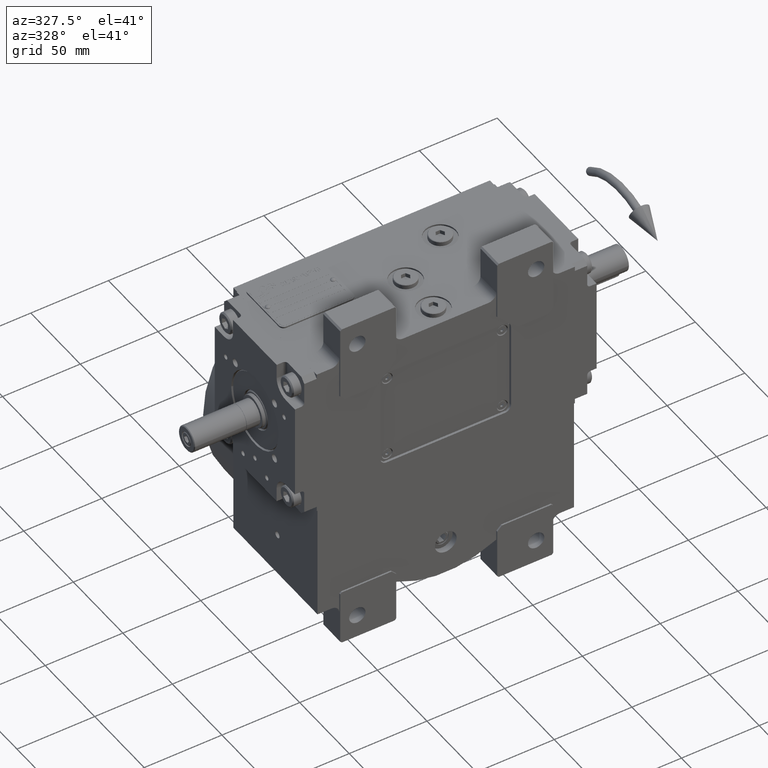
[diagram: clean part render]
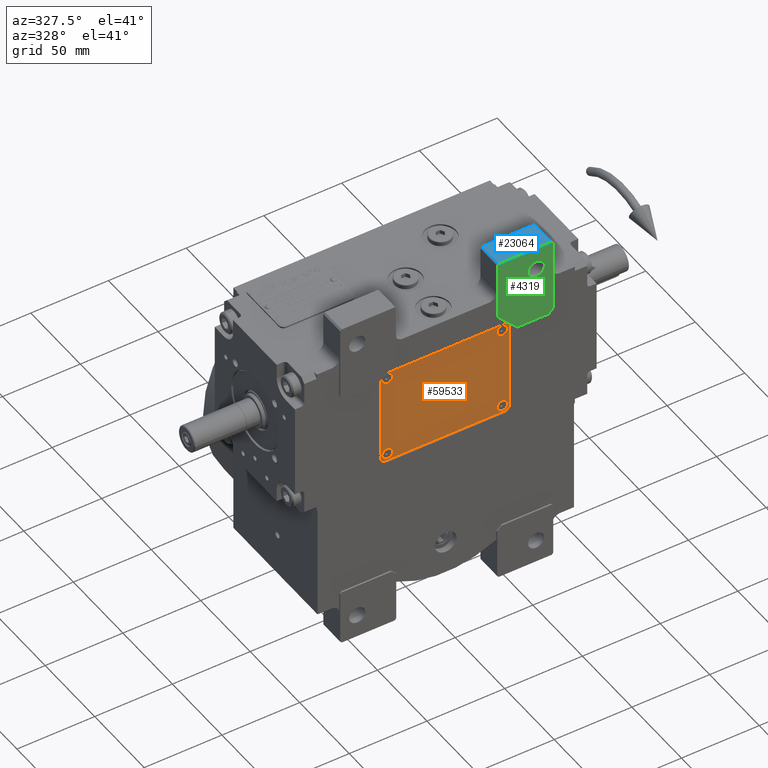
[diagram: same view with three faces highlighted in distinct colors, each labeled with its STEP entity id]
A machine part, auxiliary view with three faces highlighted in distinct colors.
Their STEP definitions:

[orange] entity #59533 — the highlighted planar face has unit normal (0, -1, 0).
#15 = EDGE_CURVE ( 'NONE', #56919, #61101, #45092, .T. ) ;
#425 = AXIS2_PLACEMENT_3D ( 'NONE', #17974, #61627, #13116 ) ;
#451 = VERTEX_POINT ( 'NONE', #5251 ) ;
#864 = CARTESIAN_POINT ( 'NONE',  ( -41.50000000000000000, -29.50000000000000000, 3.000000000000002665 ) ) ;
#940 = LINE ( 'NONE', #20337, #42268 ) ;
#977 = DIRECTION ( 'NONE',  ( 0.7071067811865441310, 0.7071067811865510144, 0.000000000000000000 ) ) ;
#1784 = CARTESIAN_POINT ( 'NONE',  ( 37.00000000000000000, 26.99999999999999645, 3.000000000000002665 ) ) ;
#2648 = CARTESIAN_POINT ( 'NONE',  ( -37.00000000000000000, -26.99999999999999645, 3.000000000000002665 ) ) ;
#2793 = DIRECTION ( 'NONE',  ( 0.000000000000000000, 1.000000000000000000, 0.000000000000000000 ) ) ;
#2813 = EDGE_LOOP ( 'NONE', ( #22416, #39448 ) ) ;
#3307 = AXIS2_PLACEMENT_3D ( 'NONE', #42170, #42500, #7624 ) ;
#4003 = DIRECTION ( 'NONE',  ( 1.000000000000000000, -9.912705577010316675E-16, 0.000000000000000000 ) ) ;
#4811 = CARTESIAN_POINT ( 'NONE',  ( -39.50000000000000000, -31.50000000000000000, 3.000000000000002665 ) ) ;
#4866 = LINE ( 'NONE', #14244, #59106 ) ;
#4970 = AXIS2_PLACEMENT_3D ( 'NONE', #47530, #26831, #46587 ) ;
#5251 = CARTESIAN_POINT ( 'NONE',  ( 33.50000000000000000, -26.99999999999999645, 3.000000000000002665 ) ) ;
#5839 = LINE ( 'NONE', #19737, #23715 ) ;
#7531 = ORIENTED_EDGE ( 'NONE', *, *, #44260, .F. ) ;
#7624 = DIRECTION ( 'NONE',  ( -1.000000000000000000, 0.000000000000000000, 0.000000000000000000 ) ) ;
#8225 = CARTESIAN_POINT ( 'NONE',  ( -33.50000000000000000, 26.99999999999999645, 3.000000000000002665 ) ) ;
#8440 = LINE ( 'NONE', #15759, #55584 ) ;
#8722 = DIRECTION ( 'NONE',  ( 1.000000000000000000, 0.000000000000000000, 0.000000000000000000 ) ) ;
#8912 = EDGE_CURVE ( 'NONE', #10950, #41474, #9518, .T. ) ;
#9510 = CARTESIAN_POINT ( 'NONE',  ( -37.00000000000000000, 26.99999999999999645, 3.000000000000002665 ) ) ;
#9518 = CIRCLE ( 'NONE', #51898, 3.500000000000003109 ) ;
#10328 = EDGE_CURVE ( 'NONE', #41739, #25732, #38378, .T. ) ;
#10392 = VERTEX_POINT ( 'NONE', #12787 ) ;
#10950 = VERTEX_POINT ( 'NONE', #21580 ) ;
#12191 = LINE ( 'NONE', #57446, #34348 ) ;
#12461 = DIRECTION ( 'NONE',  ( 0.000000000000000000, 0.000000000000000000, 1.000000000000000000 ) ) ;
#12601 = ORIENTED_EDGE ( 'NONE', *, *, #55099, .T. ) ;
#12780 = DIRECTION ( 'NONE',  ( 1.000000000000000000, 0.000000000000000000, 0.000000000000000000 ) ) ;
#12787 = CARTESIAN_POINT ( 'NONE',  ( -39.50000000000000000, 31.50000000000000000, 3.000000000000002665 ) ) ;
#13116 = DIRECTION ( 'NONE',  ( 1.000000000000000000, 0.000000000000000000, 0.000000000000000000 ) ) ;
#13262 = VERTEX_POINT ( 'NONE', #57525 ) ;
#13556 = PLANE ( 'NONE',  #19971 ) ;
#14244 = CARTESIAN_POINT ( 'NONE',  ( -39.50000000000000000, 31.50000000000000000, 3.000000000000002665 ) ) ;
#14465 = DIRECTION ( 'NONE',  ( 0.000000000000000000, -1.000000000000000000, 0.000000000000000000 ) ) ;
#15192 = CIRCLE ( 'NONE', #50324, 3.500000000000003109 ) ;
#15214 = DIRECTION ( 'NONE',  ( -0.7071067811865474617, -0.7071067811865474617, 0.000000000000000000 ) ) ;
#15431 = ORIENTED_EDGE ( 'NONE', *, *, #41158, .T. ) ;
#15759 = CARTESIAN_POINT ( 'NONE',  ( -41.50000000000000000, 29.50000000000000000, 3.000000000000002665 ) ) ;
#16145 = LINE ( 'NONE', #55913, #38737 ) ;
#16270 = DIRECTION ( 'NONE',  ( 1.000000000000000000, -9.912705577010316675E-16, 0.000000000000000000 ) ) ;
#17302 = ORIENTED_EDGE ( 'NONE', *, *, #25133, .T. ) ;
#17434 = FACE_BOUND ( 'NONE', #35203, .T. ) ;
#17575 = DIRECTION ( 'NONE',  ( 0.000000000000000000, 0.000000000000000000, 1.000000000000000000 ) ) ;
#17763 = FACE_OUTER_BOUND ( 'NONE', #33383, .T. ) ;
#17974 = CARTESIAN_POINT ( 'NONE',  ( 37.00000000000000000, -26.99999999999999645, 3.000000000000002665 ) ) ;
#18776 = EDGE_CURVE ( 'NONE', #38570, #13262, #5839, .T. ) ;
#18891 = CIRCLE ( 'NONE', #55060, 3.500000000000003109 ) ;
#19362 = EDGE_CURVE ( 'NONE', #25732, #41739, #49635, .T. ) ;
#19737 = CARTESIAN_POINT ( 'NONE',  ( 39.50000000000000000, -31.50000000000000000, 3.000000000000002665 ) ) ;
#19812 = CARTESIAN_POINT ( 'NONE',  ( -41.50000000000000000, 29.50000000000000000, 3.000000000000002665 ) ) ;
#19971 = AXIS2_PLACEMENT_3D ( 'NONE', #27764, #42632, #8722 ) ;
#20181 = DIRECTION ( 'NONE',  ( 0.7071067811865474617, -0.7071067811865474617, 0.000000000000000000 ) ) ;
#20337 = CARTESIAN_POINT ( 'NONE',  ( 41.50000000000000000, 29.50000000000000000, 3.000000000000002665 ) ) ;
#21072 = ORIENTED_EDGE ( 'NONE', *, *, #24102, .F. ) ;
#21580 = CARTESIAN_POINT ( 'NONE',  ( -33.50000000000000000, -26.99999999999999645, 3.000000000000002665 ) ) ;
#22416 = ORIENTED_EDGE ( 'NONE', *, *, #19362, .F. ) ;
#22914 = FACE_BOUND ( 'NONE', #31956, .T. ) ;
#23232 = FACE_BOUND ( 'NONE', #38696, .T. ) ;
#23715 = VECTOR ( 'NONE', #977, 999.9999999999998863 ) ;
#24102 = EDGE_CURVE ( 'NONE', #451, #25673, #15192, .T. ) ;
#24868 = AXIS2_PLACEMENT_3D ( 'NONE', #1784, #12461, #12780 ) ;
#25032 = CARTESIAN_POINT ( 'NONE',  ( 40.50000000000000000, -26.99999999999999645, 3.000000000000002665 ) ) ;
#25053 = EDGE_CURVE ( 'NONE', #41474, #10950, #32859, .T. ) ;
#25133 = EDGE_CURVE ( 'NONE', #44494, #56919, #8440, .T. ) ;
#25673 = VERTEX_POINT ( 'NONE', #25032 ) ;
#25732 = VERTEX_POINT ( 'NONE', #29558 ) ;
#26168 = VECTOR ( 'NONE', #20181, 1000.000000000000114 ) ;
#26831 = DIRECTION ( 'NONE',  ( 0.000000000000000000, 0.000000000000000000, 1.000000000000000000 ) ) ;
#27357 = VERTEX_POINT ( 'NONE', #49248 ) ;
#27538 = CARTESIAN_POINT ( 'NONE',  ( -40.50000000000000000, -26.99999999999999645, 3.000000000000002665 ) ) ;
#27570 = DIRECTION ( 'NONE',  ( -1.000000000000000000, 0.000000000000000000, 0.000000000000000000 ) ) ;
#27764 = CARTESIAN_POINT ( 'NONE',  ( 0.000000000000000000, 0.000000000000000000, 3.000000000000002665 ) ) ;
#28895 = VERTEX_POINT ( 'NONE', #8225 ) ;
#29024 = ORIENTED_EDGE ( 'NONE', *, *, #25053, .F. ) ;
#29212 = DIRECTION ( 'NONE',  ( 0.000000000000000000, 0.000000000000000000, 1.000000000000000000 ) ) ;
#29558 = CARTESIAN_POINT ( 'NONE',  ( 40.50000000000000000, 26.99999999999999645, 3.000000000000002665 ) ) ;
#29697 = ORIENTED_EDGE ( 'NONE', *, *, #15, .T. ) ;
#31403 = CIRCLE ( 'NONE', #425, 3.500000000000003109 ) ;
#31956 = EDGE_LOOP ( 'NONE', ( #40314, #7531 ) ) ;
#32305 = ORIENTED_EDGE ( 'NONE', *, *, #55785, .F. ) ;
#32425 = ORIENTED_EDGE ( 'NONE', *, *, #35220, .T. ) ;
#32733 = VERTEX_POINT ( 'NONE', #34829 ) ;
#32765 = ORIENTED_EDGE ( 'NONE', *, *, #43218, .T. ) ;
#32859 = CIRCLE ( 'NONE', #4970, 3.500000000000003109 ) ;
#33014 = EDGE_CURVE ( 'NONE', #28895, #27357, #38795, .T. ) ;
#33383 = EDGE_LOOP ( 'NONE', ( #41020, #15431, #32425, #32765, #17302, #29697, #12601, #53178 ) ) ;
#34348 = VECTOR ( 'NONE', #2793, 1000.000000000000000 ) ;
#34649 = AXIS2_PLACEMENT_3D ( 'NONE', #37644, #53182, #4003 ) ;
#34829 = CARTESIAN_POINT ( 'NONE',  ( 41.50000000000000000, 29.50000000000000000, 3.000000000000002665 ) ) ;
#35203 = EDGE_LOOP ( 'NONE', ( #32305, #21072 ) ) ;
#35220 = EDGE_CURVE ( 'NONE', #46386, #10392, #42006, .T. ) ;
#36706 = CARTESIAN_POINT ( 'NONE',  ( 39.50000000000000000, -31.50000000000000000, 3.000000000000002665 ) ) ;
#37644 = CARTESIAN_POINT ( 'NONE',  ( -37.00000000000000000, 26.99999999999999645, 3.000000000000002665 ) ) ;
#37776 = VECTOR ( 'NONE', #63028, 1000.000000000000000 ) ;
#38378 = CIRCLE ( 'NONE', #3307, 3.500000000000003109 ) ;
#38570 = VERTEX_POINT ( 'NONE', #36706 ) ;
#38696 = EDGE_LOOP ( 'NONE', ( #53838, #29024 ) ) ;
#38737 = VECTOR ( 'NONE', #61081, 1000.000000000000000 ) ;
#38795 = CIRCLE ( 'NONE', #34649, 3.500000000000003109 ) ;
#39448 = ORIENTED_EDGE ( 'NONE', *, *, #10328, .F. ) ;
#40314 = ORIENTED_EDGE ( 'NONE', *, *, #33014, .F. ) ;
#41020 = ORIENTED_EDGE ( 'NONE', *, *, #43747, .T. ) ;
#41158 = EDGE_CURVE ( 'NONE', #32733, #46386, #940, .T. ) ;
#41474 = VERTEX_POINT ( 'NONE', #27538 ) ;
#41739 = VERTEX_POINT ( 'NONE', #42693 ) ;
#42006 = LINE ( 'NONE', #62705, #37776 ) ;
#42170 = CARTESIAN_POINT ( 'NONE',  ( 37.00000000000000000, 26.99999999999999645, 3.000000000000002665 ) ) ;
#42268 = VECTOR ( 'NONE', #44275, 1000.000000000000114 ) ;
#42500 = DIRECTION ( 'NONE',  ( 0.000000000000000000, 0.000000000000000000, 1.000000000000000000 ) ) ;
#42632 = DIRECTION ( 'NONE',  ( 0.000000000000000000, 0.000000000000000000, 1.000000000000000000 ) ) ;
#42693 = CARTESIAN_POINT ( 'NONE',  ( 33.50000000000000000, 26.99999999999999645, 3.000000000000002665 ) ) ;
#43218 = EDGE_CURVE ( 'NONE', #10392, #44494, #4866, .T. ) ;
#43747 = EDGE_CURVE ( 'NONE', #13262, #32733, #12191, .T. ) ;
#44260 = EDGE_CURVE ( 'NONE', #27357, #28895, #18891, .T. ) ;
#44275 = DIRECTION ( 'NONE',  ( -0.7071067811865474617, 0.7071067811865474617, 0.000000000000000000 ) ) ;
#44494 = VERTEX_POINT ( 'NONE', #19812 ) ;
#45092 = LINE ( 'NONE', #54810, #26168 ) ;
#46386 = VERTEX_POINT ( 'NONE', #59776 ) ;
#46587 = DIRECTION ( 'NONE',  ( -1.000000000000000000, 0.000000000000000000, 0.000000000000000000 ) ) ;
#47530 = CARTESIAN_POINT ( 'NONE',  ( -37.00000000000000000, -26.99999999999999645, 3.000000000000002665 ) ) ;
#49248 = CARTESIAN_POINT ( 'NONE',  ( -40.50000000000000000, 26.99999999999999645, 3.000000000000002665 ) ) ;
#49635 = CIRCLE ( 'NONE', #24868, 3.500000000000003109 ) ;
#50324 = AXIS2_PLACEMENT_3D ( 'NONE', #56398, #17575, #27570 ) ;
#51898 = AXIS2_PLACEMENT_3D ( 'NONE', #2648, #55408, #16270 ) ;
#53178 = ORIENTED_EDGE ( 'NONE', *, *, #18776, .T. ) ;
#53182 = DIRECTION ( 'NONE',  ( 0.000000000000000000, 0.000000000000000000, 1.000000000000000000 ) ) ;
#53790 = DIRECTION ( 'NONE',  ( -1.000000000000000000, 0.000000000000000000, 0.000000000000000000 ) ) ;
#53838 = ORIENTED_EDGE ( 'NONE', *, *, #8912, .F. ) ;
#54810 = CARTESIAN_POINT ( 'NONE',  ( -41.50000000000000000, -29.50000000000000000, 3.000000000000002665 ) ) ;
#55060 = AXIS2_PLACEMENT_3D ( 'NONE', #9510, #29212, #53790 ) ;
#55099 = EDGE_CURVE ( 'NONE', #61101, #38570, #16145, .T. ) ;
#55408 = DIRECTION ( 'NONE',  ( 0.000000000000000000, 0.000000000000000000, 1.000000000000000000 ) ) ;
#55584 = VECTOR ( 'NONE', #14465, 1000.000000000000000 ) ;
#55785 = EDGE_CURVE ( 'NONE', #25673, #451, #31403, .T. ) ;
#55913 = CARTESIAN_POINT ( 'NONE',  ( -39.50000000000000000, -31.50000000000000000, 3.000000000000002665 ) ) ;
#56398 = CARTESIAN_POINT ( 'NONE',  ( 37.00000000000000000, -26.99999999999999645, 3.000000000000002665 ) ) ;
#56919 = VERTEX_POINT ( 'NONE', #864 ) ;
#57218 = FACE_BOUND ( 'NONE', #2813, .T. ) ;
#57446 = CARTESIAN_POINT ( 'NONE',  ( 41.50000000000000000, -29.50000000000000000, 3.000000000000002665 ) ) ;
#57525 = CARTESIAN_POINT ( 'NONE',  ( 41.50000000000000000, -29.50000000000000000, 3.000000000000002665 ) ) ;
#59106 = VECTOR ( 'NONE', #15214, 1000.000000000000114 ) ;
#59533 = ADVANCED_FACE ( 'NONE', ( #17763, #57218, #22914, #17434, #23232 ), #13556, .T. ) ;
#59776 = CARTESIAN_POINT ( 'NONE',  ( 39.50000000000000000, 31.50000000000000000, 3.000000000000002665 ) ) ;
#61081 = DIRECTION ( 'NONE',  ( 1.000000000000000000, 0.000000000000000000, 0.000000000000000000 ) ) ;
#61101 = VERTEX_POINT ( 'NONE', #4811 ) ;
#61627 = DIRECTION ( 'NONE',  ( 0.000000000000000000, 0.000000000000000000, 1.000000000000000000 ) ) ;
#62705 = CARTESIAN_POINT ( 'NONE',  ( 39.50000000000000000, 31.50000000000000000, 3.000000000000002665 ) ) ;
#63028 = DIRECTION ( 'NONE',  ( -1.000000000000000000, 0.000000000000000000, 0.000000000000000000 ) ) ;

[blue] entity #23064 — the highlighted planar face has unit normal (0, 0, 1).
#1171 = ORIENTED_EDGE ( 'NONE', *, *, #30025, .T. ) ;
#1515 = EDGE_CURVE ( 'NONE', #4621, #55666, #12755, .T. ) ;
#1528 = VECTOR ( 'NONE', #36689, 1000.000000000000000 ) ;
#4111 = ORIENTED_EDGE ( 'NONE', *, *, #13394, .F. ) ;
#4621 = VERTEX_POINT ( 'NONE', #9980 ) ;
#8357 = LINE ( 'NONE', #13519, #47544 ) ;
#9980 = CARTESIAN_POINT ( 'NONE',  ( 67.50000000000000000, -24.50000000000000000, 140.0000000000000000 ) ) ;
#10297 = LINE ( 'NONE', #40015, #39425 ) ;
#11638 = PLANE ( 'NONE',  #22318 ) ;
#11903 = VERTEX_POINT ( 'NONE', #16224 ) ;
#12755 = LINE ( 'NONE', #36032, #15674 ) ;
#13394 = EDGE_CURVE ( 'NONE', #38853, #55666, #10297, .T. ) ;
#13519 = CARTESIAN_POINT ( 'NONE',  ( 67.50000000000000000, -41.50000000000000000, 140.0000000000000000 ) ) ;
#15674 = VECTOR ( 'NONE', #46369, 1000.000000000000000 ) ;
#16224 = CARTESIAN_POINT ( 'NONE',  ( 67.50000000000000000, -41.50000000000000000, 140.0000000000000000 ) ) ;
#22318 = AXIS2_PLACEMENT_3D ( 'NONE', #45239, #46505, #60140 ) ;
#23064 = ADVANCED_FACE ( 'NONE', ( #35859 ), #11638, .T. ) ;
#30025 = EDGE_CURVE ( 'NONE', #11903, #4621, #8357, .T. ) ;
#35859 = FACE_OUTER_BOUND ( 'NONE', #42586, .T. ) ;
#36032 = CARTESIAN_POINT ( 'NONE',  ( 67.50000000000000000, -24.50000000000000000, 140.0000000000000000 ) ) ;
#36689 = DIRECTION ( 'NONE',  ( -1.000000000000000000, 0.000000000000000000, 0.000000000000000000 ) ) ;
#38853 = VERTEX_POINT ( 'NONE', #63828 ) ;
#39425 = VECTOR ( 'NONE', #49745, 1000.000000000000000 ) ;
#40015 = CARTESIAN_POINT ( 'NONE',  ( 33.49999999999934630, -41.50000000000000000, 140.0000000000000000 ) ) ;
#40287 = CARTESIAN_POINT ( 'NONE',  ( 33.49999999999934630, -24.50000000000000000, 140.0000000000000000 ) ) ;
#42586 = EDGE_LOOP ( 'NONE', ( #44253, #4111, #57848, #1171 ) ) ;
#42595 = DIRECTION ( 'NONE',  ( 0.000000000000000000, 1.000000000000000000, 0.000000000000000000 ) ) ;
#43120 = CARTESIAN_POINT ( 'NONE',  ( 67.50000000000000000, -41.50000000000000000, 140.0000000000000000 ) ) ;
#44253 = ORIENTED_EDGE ( 'NONE', *, *, #1515, .T. ) ;
#45239 = CARTESIAN_POINT ( 'NONE',  ( 68.50000000000000000, -24.50000000000000000, 140.0000000000000000 ) ) ;
#46369 = DIRECTION ( 'NONE',  ( -1.000000000000000000, 0.000000000000000000, 0.000000000000000000 ) ) ;
#46505 = DIRECTION ( 'NONE',  ( 0.000000000000000000, 0.000000000000000000, 1.000000000000000000 ) ) ;
#47032 = LINE ( 'NONE', #43120, #1528 ) ;
#47544 = VECTOR ( 'NONE', #42595, 1000.000000000000000 ) ;
#49745 = DIRECTION ( 'NONE',  ( 0.000000000000000000, 1.000000000000000000, 0.000000000000000000 ) ) ;
#55666 = VERTEX_POINT ( 'NONE', #40287 ) ;
#57848 = ORIENTED_EDGE ( 'NONE', *, *, #60557, .F. ) ;
#60140 = DIRECTION ( 'NONE',  ( -1.000000000000000000, 0.000000000000000000, 0.000000000000000000 ) ) ;
#60557 = EDGE_CURVE ( 'NONE', #11903, #38853, #47032, .T. ) ;
#63828 = CARTESIAN_POINT ( 'NONE',  ( 33.49999999999934630, -41.50000000000000000, 140.0000000000000000 ) ) ;

[green] entity #4319 — the highlighted planar face has unit normal (0, -1, 0).
#3 = EDGE_CURVE ( 'NONE', #38853, #49891, #59346, .T. ) ;
#1528 = VECTOR ( 'NONE', #36689, 1000.000000000000000 ) ;
#1810 = CARTESIAN_POINT ( 'NONE',  ( 32.49999999999934630, -41.50000000000000000, 139.0000000000000000 ) ) ;
#2509 = ORIENTED_EDGE ( 'NONE', *, *, #53215, .T. ) ;
#2787 = DIRECTION ( 'NONE',  ( 0.7071067811865474617, 0.000000000000000000, -0.7071067811865474617 ) ) ;
#3070 = ORIENTED_EDGE ( 'NONE', *, *, #60557, .T. ) ;
#3095 = VECTOR ( 'NONE', #6192, 1000.000000000000114 ) ;
#4319 = ADVANCED_FACE ( 'NONE', ( #46861, #56561 ), #61430, .T. ) ;
#4676 = AXIS2_PLACEMENT_3D ( 'NONE', #5798, #15188, #45233 ) ;
#5798 = CARTESIAN_POINT ( 'NONE',  ( 57.50000000000000000, -41.50000000000000000, 125.0000000000000000 ) ) ;
#6192 = DIRECTION ( 'NONE',  ( -0.7071067811865474617, 0.000000000000000000, 0.7071067811865474617 ) ) ;
#6769 = CIRCLE ( 'NONE', #4676, 5.249999999999997335 ) ;
#7779 = ORIENTED_EDGE ( 'NONE', *, *, #54958, .T. ) ;
#9193 = VERTEX_POINT ( 'NONE', #10390 ) ;
#9631 = VERTEX_POINT ( 'NONE', #39073 ) ;
#10390 = CARTESIAN_POINT ( 'NONE',  ( 52.25000000000000000, -41.50000000000000000, 125.0000000000000000 ) ) ;
#11020 = DIRECTION ( 'NONE',  ( -1.000000000000000000, 0.000000000000000000, 0.000000000000000000 ) ) ;
#11227 = ORIENTED_EDGE ( 'NONE', *, *, #60988, .T. ) ;
#11759 = VECTOR ( 'NONE', #49975, 1000.000000000000114 ) ;
#11903 = VERTEX_POINT ( 'NONE', #16224 ) ;
#12266 = CARTESIAN_POINT ( 'NONE',  ( 0.000000000000000000, -41.50000000000000000, 0.000000000000000000 ) ) ;
#13703 = EDGE_CURVE ( 'NONE', #29912, #47656, #24647, .T. ) ;
#14876 = CARTESIAN_POINT ( 'NONE',  ( 32.49999999999934630, -41.50000000000000000, 139.0000000000000000 ) ) ;
#15188 = DIRECTION ( 'NONE',  ( 0.000000000000000000, 1.000000000000000000, 0.000000000000000000 ) ) ;
#16224 = CARTESIAN_POINT ( 'NONE',  ( 67.50000000000000000, -41.50000000000000000, 140.0000000000000000 ) ) ;
#16269 = DIRECTION ( 'NONE',  ( 0.7071067811865474617, 0.000000000000000000, 0.7071067811865474617 ) ) ;
#17344 = LINE ( 'NONE', #42544, #44740 ) ;
#19041 = DIRECTION ( 'NONE',  ( 0.000000000000000000, 1.000000000000000000, 0.000000000000000000 ) ) ;
#19395 = ORIENTED_EDGE ( 'NONE', *, *, #3, .T. ) ;
#20772 = CARTESIAN_POINT ( 'NONE',  ( 68.50000000000000000, -41.50000000000000000, 139.0000000000000000 ) ) ;
#21055 = CARTESIAN_POINT ( 'NONE',  ( 68.50000000000000000, -41.50000000000000000, 139.0000000000000000 ) ) ;
#22314 = LINE ( 'NONE', #21055, #3095 ) ;
#22842 = DIRECTION ( 'NONE',  ( 0.000000000000000000, 0.000000000000000000, 1.000000000000000000 ) ) ;
#23172 = CARTESIAN_POINT ( 'NONE',  ( 32.49999999999934630, -41.50000000000000000, 102.0000000000000000 ) ) ;
#24289 = ORIENTED_EDGE ( 'NONE', *, *, #55037, .T. ) ;
#24307 = VECTOR ( 'NONE', #22842, 1000.000000000000000 ) ;
#24647 = LINE ( 'NONE', #45040, #33296 ) ;
#26148 = EDGE_LOOP ( 'NONE', ( #11227, #24289 ) ) ;
#28475 = CARTESIAN_POINT ( 'NONE',  ( 45.49999999999939604, -41.50000000000000000, 89.00000000000000000 ) ) ;
#29574 = EDGE_CURVE ( 'NONE', #33346, #11903, #22314, .T. ) ;
#29912 = VERTEX_POINT ( 'NONE', #51081 ) ;
#30357 = CARTESIAN_POINT ( 'NONE',  ( 68.50000000000000000, -41.50000000000000000, 92.00000000000000000 ) ) ;
#31972 = DIRECTION ( 'NONE',  ( 0.000000000000000000, -1.000000000000000000, 0.000000000000000000 ) ) ;
#33283 = CARTESIAN_POINT ( 'NONE',  ( 57.50000000000000000, -41.50000000000000000, 125.0000000000000000 ) ) ;
#33296 = VECTOR ( 'NONE', #16269, 1000.000000000000114 ) ;
#33346 = VERTEX_POINT ( 'NONE', #20772 ) ;
#34296 = ORIENTED_EDGE ( 'NONE', *, *, #58294, .T. ) ;
#36689 = DIRECTION ( 'NONE',  ( -1.000000000000000000, 0.000000000000000000, 0.000000000000000000 ) ) ;
#37072 = CARTESIAN_POINT ( 'NONE',  ( 68.50000000000000000, -41.50000000000000000, 92.00000000000000000 ) ) ;
#38853 = VERTEX_POINT ( 'NONE', #63828 ) ;
#39073 = CARTESIAN_POINT ( 'NONE',  ( 45.49999999999939604, -41.50000000000000000, 89.00000000000000000 ) ) ;
#42495 = VERTEX_POINT ( 'NONE', #59435 ) ;
#42544 = CARTESIAN_POINT ( 'NONE',  ( 32.49999999999934630, -41.50000000000000000, 102.0000000000000000 ) ) ;
#43120 = CARTESIAN_POINT ( 'NONE',  ( 67.50000000000000000, -41.50000000000000000, 140.0000000000000000 ) ) ;
#43416 = AXIS2_PLACEMENT_3D ( 'NONE', #12266, #31972, #11020 ) ;
#43959 = DIRECTION ( 'NONE',  ( 0.000000000000000000, 0.000000000000000000, -1.000000000000000000 ) ) ;
#44269 = LINE ( 'NONE', #14876, #60450 ) ;
#44740 = VECTOR ( 'NONE', #2787, 1000.000000000000114 ) ;
#44910 = CIRCLE ( 'NONE', #61447, 5.249999999999997335 ) ;
#45040 = CARTESIAN_POINT ( 'NONE',  ( 65.50000000000000000, -41.50000000000000000, 89.00000000000000000 ) ) ;
#45233 = DIRECTION ( 'NONE',  ( -1.000000000000000000, 0.000000000000000000, 5.286776307738843186E-15 ) ) ;
#45436 = ORIENTED_EDGE ( 'NONE', *, *, #29574, .T. ) ;
#46861 = FACE_BOUND ( 'NONE', #26148, .T. ) ;
#47032 = LINE ( 'NONE', #43120, #1528 ) ;
#47656 = VERTEX_POINT ( 'NONE', #30357 ) ;
#47781 = EDGE_LOOP ( 'NONE', ( #3070, #19395, #7779, #2509, #34296, #57284, #55040, #45436 ) ) ;
#48198 = DIRECTION ( 'NONE',  ( 1.000000000000000000, 0.000000000000000000, 0.000000000000000000 ) ) ;
#49891 = VERTEX_POINT ( 'NONE', #1810 ) ;
#49975 = DIRECTION ( 'NONE',  ( -0.7071067811865474617, 0.000000000000000000, -0.7071067811865474617 ) ) ;
#51048 = VECTOR ( 'NONE', #48198, 1000.000000000000000 ) ;
#51081 = CARTESIAN_POINT ( 'NONE',  ( 65.50000000000000000, -41.50000000000000000, 89.00000000000000000 ) ) ;
#53084 = LINE ( 'NONE', #28475, #51048 ) ;
#53215 = EDGE_CURVE ( 'NONE', #61379, #9631, #17344, .T. ) ;
#54958 = EDGE_CURVE ( 'NONE', #49891, #61379, #44269, .T. ) ;
#55037 = EDGE_CURVE ( 'NONE', #9193, #42495, #6769, .T. ) ;
#55040 = ORIENTED_EDGE ( 'NONE', *, *, #61350, .T. ) ;
#55256 = LINE ( 'NONE', #37072, #24307 ) ;
#56561 = FACE_OUTER_BOUND ( 'NONE', #47781, .T. ) ;
#57284 = ORIENTED_EDGE ( 'NONE', *, *, #13703, .T. ) ;
#58186 = DIRECTION ( 'NONE',  ( 1.000000000000000000, 0.000000000000000000, 5.286776307738843186E-15 ) ) ;
#58294 = EDGE_CURVE ( 'NONE', #9631, #29912, #53084, .T. ) ;
#59346 = LINE ( 'NONE', #59647, #11759 ) ;
#59435 = CARTESIAN_POINT ( 'NONE',  ( 62.75000000000000000, -41.50000000000000000, 125.0000000000000000 ) ) ;
#59647 = CARTESIAN_POINT ( 'NONE',  ( 33.49999999999934630, -41.50000000000000000, 140.0000000000000000 ) ) ;
#60450 = VECTOR ( 'NONE', #43959, 1000.000000000000000 ) ;
#60557 = EDGE_CURVE ( 'NONE', #11903, #38853, #47032, .T. ) ;
#60988 = EDGE_CURVE ( 'NONE', #42495, #9193, #44910, .T. ) ;
#61350 = EDGE_CURVE ( 'NONE', #47656, #33346, #55256, .T. ) ;
#61379 = VERTEX_POINT ( 'NONE', #23172 ) ;
#61430 = PLANE ( 'NONE',  #43416 ) ;
#61447 = AXIS2_PLACEMENT_3D ( 'NONE', #33283, #19041, #58186 ) ;
#63828 = CARTESIAN_POINT ( 'NONE',  ( 33.49999999999934630, -41.50000000000000000, 140.0000000000000000 ) ) ;